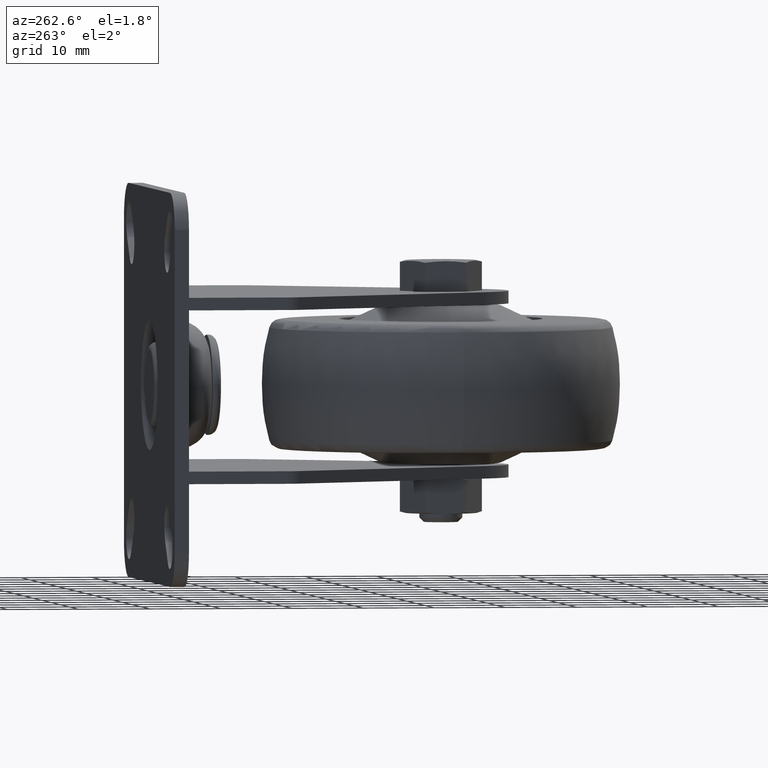
[diagram: clean part render]
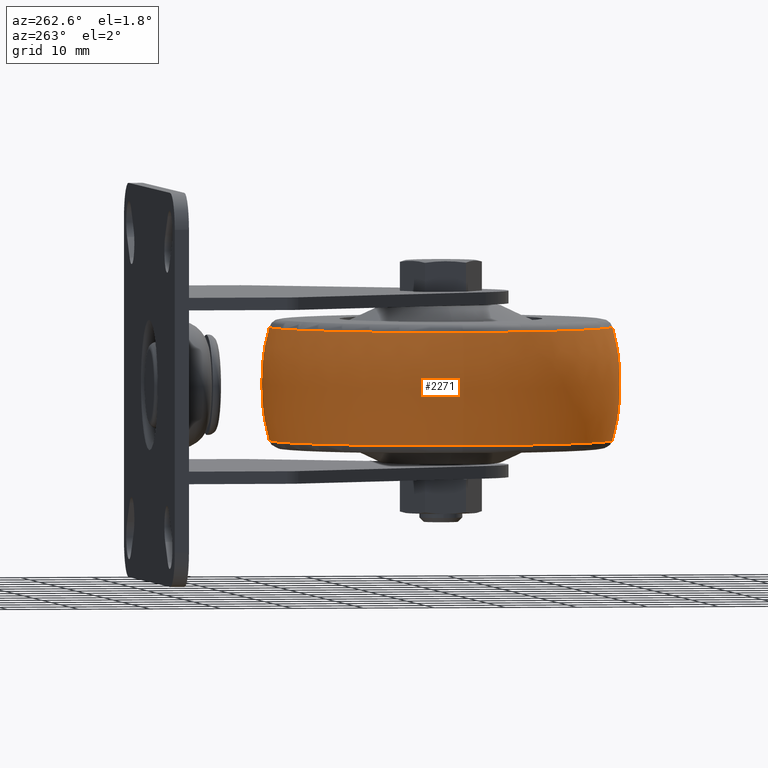
[diagram: same view with one face highlighted and labeled with its STEP entity id]
A machine part, auxiliary view. The second image highlights one B-rep face of the part: STEP entity #2271.
In plain terms, the highlighted face is a freeform B-spline surface patch.
Its self-contained STEP definition (entity closure, byte-faithful):
#39=(
BOUNDED_SURFACE()
B_SPLINE_SURFACE(2,2,((#4052,#4053,#4054,#4055,#4056,#4057,#4058,#4059,
#4060),(#4061,#4062,#4063,#4064,#4065,#4066,#4067,#4068,#4069),(#4070,#4071,
#4072,#4073,#4074,#4075,#4076,#4077,#4078)),.UNSPECIFIED.,.F.,.T.,.F.)
B_SPLINE_SURFACE_WITH_KNOTS((3,3),(3,2,2,2,3),(-0.266294017117882,0.266294013401271),
(-3.14159265358979,-1.5707963267949,0.,1.5707963267949,3.14159265358979),
 .UNSPECIFIED.)
GEOMETRIC_REPRESENTATION_ITEM()
RATIONAL_B_SPLINE_SURFACE(((1.,0.707106781186548,1.,0.707106781186548,1.,
0.707106781186548,1.,0.707106781186548,1.),(0.964752778374546,0.682183231757204,
0.964752778374546,0.682183231757204,0.964752778374546,0.682183231757204,
0.964752778374546,0.682183231757204,0.964752778374546),(1.,0.707106781186548,
1.,0.707106781186548,1.,0.707106781186548,1.,0.707106781186548,1.)))
REPRESENTATION_ITEM('')
SURFACE()
);
#363=FACE_OUTER_BOUND('',#528,.T.);
#528=EDGE_LOOP('',(#1940,#1941,#1942,#1943));
#931=CIRCLE('',#2699,23.9425833659);
#932=CIRCLE('',#2700,30.0000000000007);
#933=CIRCLE('',#2701,23.9425833366);
#1127=VERTEX_POINT('',#4049);
#1128=VERTEX_POINT('',#4079);
#1404=EDGE_CURVE('',#1127,#1127,#931,.T.);
#1405=EDGE_CURVE('',#1127,#1128,#932,.T.);
#1406=EDGE_CURVE('',#1128,#1128,#933,.T.);
#1940=ORIENTED_EDGE('',*,*,#1404,.F.);
#1941=ORIENTED_EDGE('',*,*,#1405,.T.);
#1942=ORIENTED_EDGE('',*,*,#1406,.T.);
#1943=ORIENTED_EDGE('',*,*,#1405,.F.);
#2271=ADVANCED_FACE('',(#363),#39,.F.);
#2699=AXIS2_PLACEMENT_3D('',#4051,#3289,#3290);
#2700=AXIS2_PLACEMENT_3D('',#4080,#3291,#3292);
#2701=AXIS2_PLACEMENT_3D('',#4081,#3293,#3294);
#3289=DIRECTION('center_axis',(1.,0.,0.));
#3290=DIRECTION('ref_axis',(0.,0.,-1.));
#3291=DIRECTION('center_axis',(2.44955868184232E-14,-1.,-1.22464679914342E-16));
#3292=DIRECTION('ref_axis',(-1.60760293965723E-14,-1.22464679914735E-16,
1.));
#3293=DIRECTION('center_axis',(1.,0.,0.));
#3294=DIRECTION('ref_axis',(0.,0.,-1.));
#4049=CARTESIAN_POINT('',(18.3947367345256,-2.93212080823681E-15,23.9425833659));
#4051=CARTESIAN_POINT('Origin',(18.3947367345256,0.,0.));
#4052=CARTESIAN_POINT('Ctrl Pts',(2.60526315790288,-1.982954791612E-13,
23.9425833365654));
#4053=CARTESIAN_POINT('Ctrl Pts',(2.60526315790347,-23.9425833365658,23.9425833365654));
#4054=CARTESIAN_POINT('Ctrl Pts',(2.60526315790385,-23.9425833365658,-1.20971843495518E-13));
#4055=CARTESIAN_POINT('Ctrl Pts',(2.60526315790424,-23.9425833365658,-23.9425833365657));
#4056=CARTESIAN_POINT('Ctrl Pts',(2.60526315790365,-1.982954791612E-13,
-23.9425833365657));
#4057=CARTESIAN_POINT('Ctrl Pts',(2.60526315790306,23.9425833365654,-23.9425833365657));
#4058=CARTESIAN_POINT('Ctrl Pts',(2.60526315790268,23.9425833365654,-1.20971843495537E-13));
#4059=CARTESIAN_POINT('Ctrl Pts',(2.60526315790229,23.9425833365654,23.9425833365654));
#4060=CARTESIAN_POINT('Ctrl Pts',(2.60526315790288,-1.982954791612E-13,
23.9425833365654));
#4061=CARTESIAN_POINT('Ctrl Pts',(10.4999999422136,-4.90926885251577E-15,
26.096049342864));
#4062=CARTESIAN_POINT('Ctrl Pts',(10.4999999422143,-26.096049342864,26.096049342864));
#4063=CARTESIAN_POINT('Ctrl Pts',(10.4999999422147,-26.096049342864,6.10622570529346E-15));
#4064=CARTESIAN_POINT('Ctrl Pts',(10.4999999422151,-26.096049342864,-26.096049342864));
#4065=CARTESIAN_POINT('Ctrl Pts',(10.4999999422145,-4.90926885251576E-15,
-26.096049342864));
#4066=CARTESIAN_POINT('Ctrl Pts',(10.4999999422138,26.096049342864,-26.096049342864));
#4067=CARTESIAN_POINT('Ctrl Pts',(10.4999999422134,26.096049342864,6.1062257052729E-15));
#4068=CARTESIAN_POINT('Ctrl Pts',(10.499999942213,26.096049342864,26.096049342864));
#4069=CARTESIAN_POINT('Ctrl Pts',(10.4999999422136,-4.90926885251577E-15,
26.096049342864));
#4070=CARTESIAN_POINT('Ctrl Pts',(18.394736734528,1.88476941652222E-13,
23.9425833659074));
#4071=CARTESIAN_POINT('Ctrl Pts',(18.3947367345286,-23.942583365907,23.9425833659074));
#4072=CARTESIAN_POINT('Ctrl Pts',(18.394736734529,-23.942583365907,1.33184295034934E-13));
#4073=CARTESIAN_POINT('Ctrl Pts',(18.3947367345294,-23.942583365907,-23.9425833659071));
#4074=CARTESIAN_POINT('Ctrl Pts',(18.3947367345288,1.88476941652222E-13,
-23.9425833659071));
#4075=CARTESIAN_POINT('Ctrl Pts',(18.3947367345282,23.9425833659074,-23.9425833659071));
#4076=CARTESIAN_POINT('Ctrl Pts',(18.3947367345278,23.9425833659074,1.33184295034915E-13));
#4077=CARTESIAN_POINT('Ctrl Pts',(18.3947367345275,23.9425833659074,23.9425833659074));
#4078=CARTESIAN_POINT('Ctrl Pts',(18.394736734528,1.88476941652222E-13,
23.9425833659074));
#4079=CARTESIAN_POINT('',(2.60526315789473,-2.01227599966048E-13,23.9425833366));
#4080=CARTESIAN_POINT('Origin',(10.5000000000001,-4.2969440374406E-15,-5.00000000000069));
#4081=CARTESIAN_POINT('Origin',(2.60526315789473,0.,0.));